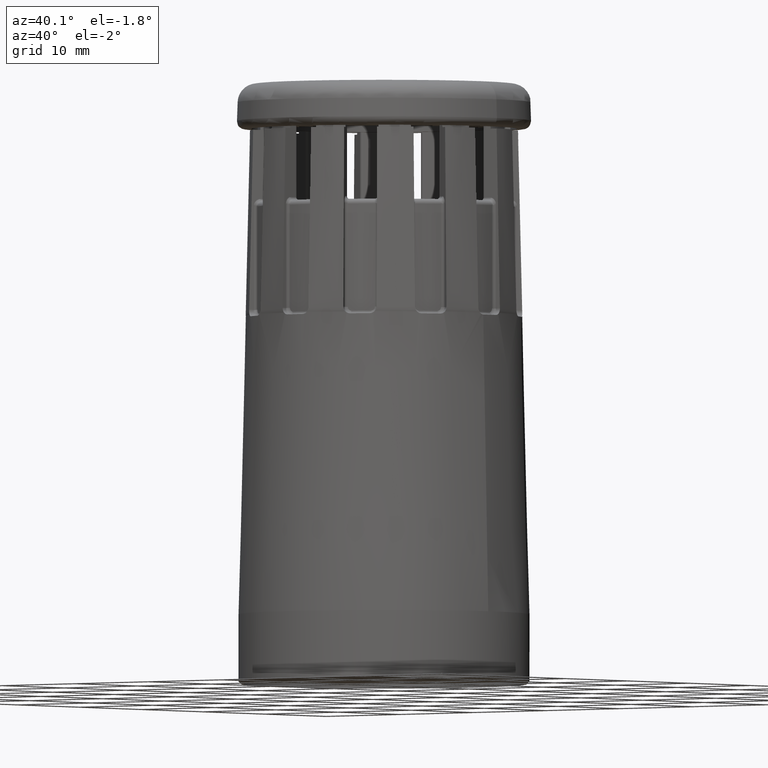
[diagram: clean part render]
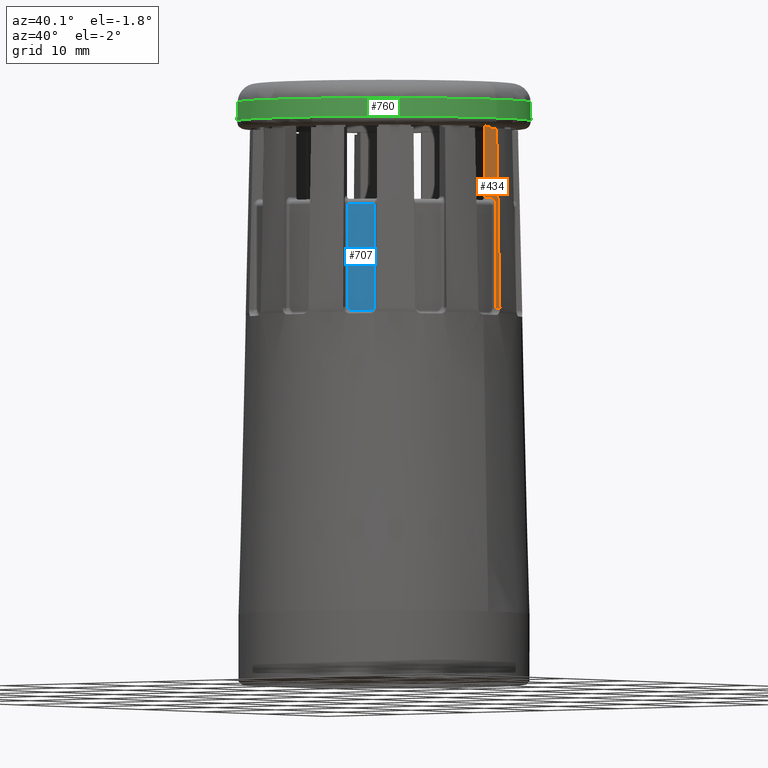
[diagram: same view with three faces highlighted in distinct colors, each labeled with its STEP entity id]
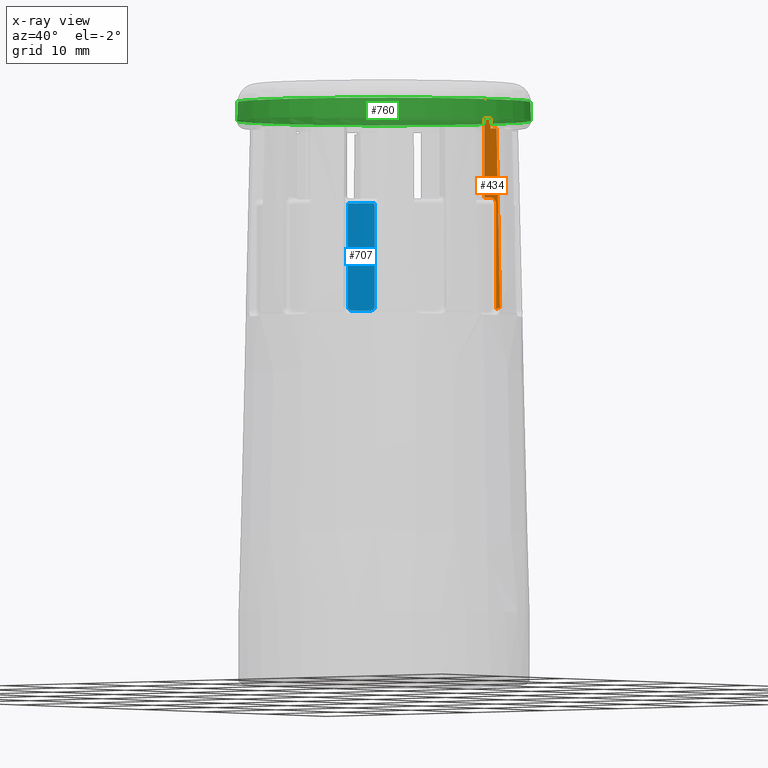
[diagram: x-ray of the same camera — body ghosted, the three highlighted faces saturated]
A machine part, auxiliary view with three faces highlighted in distinct colors.
The next image is the same camera in x-ray (body ghosted, the three faces saturated) — at least one of them is partly hidden behind the body in this view.
Their STEP definitions:

[orange] entity #434 — the highlighted planar face has unit normal (0, 1, 0).
#227=PLANE('',#7231);
#328=(
BOUNDED_CURVE()
B_SPLINE_CURVE(2,(#10248,#10249,#10250),.UNSPECIFIED.,.F.,.F.)
B_SPLINE_CURVE_WITH_KNOTS((3,3),(0.,1.),.UNSPECIFIED.)
CURVE()
GEOMETRIC_REPRESENTATION_ITEM()
RATIONAL_B_SPLINE_CURVE((1.,1.00012975869552,1.00000916871872))
REPRESENTATION_ITEM('')
);
#329=(
BOUNDED_CURVE()
B_SPLINE_CURVE(2,(#10256,#10257,#10258),.UNSPECIFIED.,.F.,.F.)
B_SPLINE_CURVE_WITH_KNOTS((3,3),(0.,1.),.UNSPECIFIED.)
CURVE()
GEOMETRIC_REPRESENTATION_ITEM()
RATIONAL_B_SPLINE_CURVE((1.,1.00049796314909,1.))
REPRESENTATION_ITEM('')
);
#434=ADVANCED_FACE('',(#978),#227,.F.);
#978=FACE_OUTER_BOUND('',#1350,.T.);
#1350=EDGE_LOOP('',(#2594,#2595,#2596,#2597,#2598,#2599,#2600,#2601,#2602,
#2603));
#2072=B_SPLINE_CURVE_WITH_KNOTS('',3,(#10224,#10225,#10226,#10227),
 .UNSPECIFIED.,.F.,.F.,(4,4),(0.,1.),.UNSPECIFIED.);
#2073=B_SPLINE_CURVE_WITH_KNOTS('',3,(#10231,#10232,#10233,#10234,#10235,
#10236,#10237,#10238,#10239,#10240,#10241,#10242),.UNSPECIFIED.,.F.,.F.,
(4,2,2,2,2,4),(0.,0.125,0.3,0.545,0.887999999999999,1.),.UNSPECIFIED.);
#2594=ORIENTED_EDGE('',*,*,#5553,.F.);
#2595=ORIENTED_EDGE('',*,*,#5478,.F.);
#2596=ORIENTED_EDGE('',*,*,#5554,.F.);
#2597=ORIENTED_EDGE('',*,*,#5555,.F.);
#2598=ORIENTED_EDGE('',*,*,#5556,.F.);
#2599=ORIENTED_EDGE('',*,*,#5557,.F.);
#2600=ORIENTED_EDGE('',*,*,#5558,.F.);
#2601=ORIENTED_EDGE('',*,*,#5559,.F.);
#2602=ORIENTED_EDGE('',*,*,#5560,.F.);
#2603=ORIENTED_EDGE('',*,*,#5561,.F.);
#4744=VERTEX_POINT('',#9892);
#4745=VERTEX_POINT('',#9893);
#4808=VERTEX_POINT('',#10228);
#4809=VERTEX_POINT('',#10230);
#4810=VERTEX_POINT('',#10243);
#4811=VERTEX_POINT('',#10245);
#4812=VERTEX_POINT('',#10247);
#4813=VERTEX_POINT('',#10251);
#4814=VERTEX_POINT('',#10253);
#4815=VERTEX_POINT('',#10255);
#5478=EDGE_CURVE('',#4744,#4745,#6560,.T.);
#5553=EDGE_CURVE('',#4745,#4808,#2072,.T.);
#5554=EDGE_CURVE('',#4809,#4744,#6597,.T.);
#5555=EDGE_CURVE('',#4810,#4809,#2073,.T.);
#5556=EDGE_CURVE('',#4811,#4810,#6598,.T.);
#5557=EDGE_CURVE('',#4812,#4811,#6599,.T.);
#5558=EDGE_CURVE('',#4813,#4812,#328,.T.);
#5559=EDGE_CURVE('',#4814,#4813,#6600,.T.);
#5560=EDGE_CURVE('',#4815,#4814,#6601,.T.);
#5561=EDGE_CURVE('',#4808,#4815,#329,.T.);
#6560=LINE('',#9891,#6882);
#6597=LINE('',#10229,#6919);
#6598=LINE('',#10244,#6920);
#6599=LINE('',#10246,#6921);
#6600=LINE('',#10252,#6922);
#6601=LINE('',#10254,#6923);
#6882=VECTOR('',#7934,1.);
#6919=VECTOR('',#8023,1.);
#6920=VECTOR('',#8024,1.);
#6921=VECTOR('',#8025,1.);
#6922=VECTOR('',#8026,1.);
#6923=VECTOR('',#8027,1.);
#7231=AXIS2_PLACEMENT_3D('',#10259,#8028,#8029);
#7934=DIRECTION('',(0.,0.,1.));
#8023=DIRECTION('',(-1.,0.,0.));
#8024=DIRECTION('',(0.,0.,1.));
#8025=DIRECTION('',(-1.,0.,0.));
#8026=DIRECTION('',(1.,0.,0.));
#8027=DIRECTION('',(0.,0.,-1.));
#8028=DIRECTION('',(0.,1.,0.));
#8029=DIRECTION('',(-1.,0.,0.));
#9891=CARTESIAN_POINT('',(12.2293703844473,1.75000000000054,36.6));
#9892=CARTESIAN_POINT('',(12.2293703844473,1.75000000000054,36.6));
#9893=CARTESIAN_POINT('',(12.2293703844474,1.75000000000064,46.9517779331273));
#10224=CARTESIAN_POINT('',(12.2293703844474,1.75000000000064,46.9517779331273));
#10225=CARTESIAN_POINT('',(12.2522305534383,1.75000000000064,46.9614433539969));
#10226=CARTESIAN_POINT('',(12.2757254416925,1.75000000000054,46.9697255686676));
#10227=CARTESIAN_POINT('',(12.2995924724237,1.75000000000054,46.9765353066182));
#10228=CARTESIAN_POINT('',(12.2995924724237,1.75000000000054,46.9765353066182));
#10229=CARTESIAN_POINT('',(13.01950459887,1.75000000000055,36.6));
#10230=CARTESIAN_POINT('',(13.01950459887,1.75000000000055,36.6));
#10231=CARTESIAN_POINT('',(13.8241636275038,1.75000000000056,35.8));
#10232=CARTESIAN_POINT('',(13.8241636275038,1.75000000000056,35.8522468435973));
#10233=CARTESIAN_POINT('',(13.8189669082501,1.75000000000056,35.9049951377512));
#10234=CARTESIAN_POINT('',(13.7940369063996,1.75000000000056,36.0291132054774));
#10235=CARTESIAN_POINT('',(13.769596778885,1.75000000000056,36.0988169909377));
#10236=CARTESIAN_POINT('',(13.6887888524273,1.75000000000056,36.2559392738181));
#10237=CARTESIAN_POINT('',(13.623729493439,1.75000000000056,36.3382777366512));
#10238=CARTESIAN_POINT('',(13.436102595346,1.75000000000056,36.499421867728));
#10239=CARTESIAN_POINT('',(13.3008846760124,1.75000000000055,36.5629844602805));
#10240=CARTESIAN_POINT('',(13.1133367532433,1.75000000000055,36.5959109283083));
#10241=CARTESIAN_POINT('',(13.0663177707332,1.75000000000055,36.6));
#10242=CARTESIAN_POINT('',(13.01950459887,1.75000000000055,36.6));
#10243=CARTESIAN_POINT('',(13.8241636275038,1.75000000000056,35.8));
#10244=CARTESIAN_POINT('',(13.8241636275038,1.75000000000056,25.));
#10245=CARTESIAN_POINT('',(13.8241636275038,1.75000000000056,25.));
#10246=CARTESIAN_POINT('',(14.3402455733131,1.75000000000057,25.));
#10247=CARTESIAN_POINT('',(14.3402455733131,1.75000000000057,25.));
#10248=CARTESIAN_POINT('',(13.890194383089,1.75000000000056,43.8));
#10249=CARTESIAN_POINT('',(14.1116869280183,1.75000000000056,34.5498553050443));
#10250=CARTESIAN_POINT('',(14.3402455733131,1.75000000000057,25.));
#10251=CARTESIAN_POINT('',(13.890194383089,1.75000000000056,43.8));
#10252=CARTESIAN_POINT('',(13.0834819524467,1.75000000000055,43.8));
#10253=CARTESIAN_POINT('',(13.0834819524467,1.75000000000055,43.8));
#10254=CARTESIAN_POINT('',(13.0834819524467,1.75000000000055,46.2));
#10255=CARTESIAN_POINT('',(13.0834819524467,1.75000000000055,46.2));
#10256=CARTESIAN_POINT('',(12.2758910063587,1.75000000000054,47.));
#10257=CARTESIAN_POINT('',(12.6670678709417,1.75000000000055,46.612738342433));
#10258=CARTESIAN_POINT('',(13.0834819524467,1.75000000000055,46.2));
#10259=CARTESIAN_POINT('',(22.0629765156146,1.75000000000064,47.));

[blue] entity #707 — the highlighted cylindrical surface (partial cylindrical patch) has radius 13.6 mm, axis along (0, 0, 1).
#707=ADVANCED_FACE('',(#1248),#921,.T.);
#921=CYLINDRICAL_SURFACE('',#7680,13.6);
#1248=FACE_OUTER_BOUND('',#1626,.T.);
#1626=EDGE_LOOP('',(#4123,#4124,#4125,#4126,#4127,#4128));
#1908=CIRCLE('',#7556,13.6);
#1977=CIRCLE('',#7678,13.6);
#2381=B_SPLINE_CURVE_WITH_KNOTS('',3,(#14358,#14359,#14360,#14361,#14362,
#14363,#14364,#14365,#14366,#14367,#14368,#14369),.UNSPECIFIED.,.F.,.F.,
(4,2,2,2,2,4),(0.,0.112,0.455000000000001,0.699999999999999,0.875000000000001,
1.),.UNSPECIFIED.);
#2384=B_SPLINE_CURVE_WITH_KNOTS('',3,(#14540,#14541,#14542,#14543,#14544,
#14545,#14546,#14547,#14548,#14549,#14550,#14551),.UNSPECIFIED.,.F.,.F.,
(4,2,2,2,2,4),(0.,0.112,0.455,0.700000000000001,0.875,1.),.UNSPECIFIED.);
#4123=ORIENTED_EDGE('',*,*,#6304,.F.);
#4124=ORIENTED_EDGE('',*,*,#6226,.F.);
#4125=ORIENTED_EDGE('',*,*,#6423,.F.);
#4126=ORIENTED_EDGE('',*,*,#6242,.F.);
#4127=ORIENTED_EDGE('',*,*,#6299,.F.);
#4128=ORIENTED_EDGE('',*,*,#6302,.F.);
#5283=VERTEX_POINT('',#13443);
#5284=VERTEX_POINT('',#13445);
#5294=VERTEX_POINT('',#13497);
#5296=VERTEX_POINT('',#13511);
#5325=VERTEX_POINT('',#14357);
#5326=VERTEX_POINT('',#14536);
#6226=EDGE_CURVE('',#5283,#5284,#6803,.T.);
#6242=EDGE_CURVE('',#5296,#5294,#6806,.T.);
#6299=EDGE_CURVE('',#5325,#5296,#2381,.T.);
#6302=EDGE_CURVE('',#5326,#5325,#1908,.T.);
#6304=EDGE_CURVE('',#5284,#5326,#2384,.T.);
#6423=EDGE_CURVE('',#5294,#5283,#1977,.T.);
#6803=LINE('',#13444,#7125);
#6806=LINE('',#13512,#7128);
#7125=VECTOR('',#8803,1.);
#7128=VECTOR('',#8814,1.);
#7556=AXIS2_PLACEMENT_3D('',#14537,#8890,#8891);
#7678=AXIS2_PLACEMENT_3D('',#18043,#9134,#9135);
#7680=AXIS2_PLACEMENT_3D('',#18045,#9138,#9139);
#8803=DIRECTION('',(0.,0.,-1.));
#8814=DIRECTION('',(0.,0.,1.));
#8890=DIRECTION('',(0.,0.,-1.));
#8891=DIRECTION('',(0.500000000000042,-0.866025403784415,0.));
#9134=DIRECTION('',(6.122553E-17,-1.060457E-16,1.));
#9135=DIRECTION('',(0.500000000000042,-0.866025403784414,0.));
#9138=DIRECTION('',(2.368476E-16,0.,1.));
#9139=DIRECTION('',(-1.,0.,2.55106393526001E-16));
#13443=CARTESIAN_POINT('',(7.99153479350089,-11.0043342208544,35.8));
#13444=CARTESIAN_POINT('',(7.99153479350089,-11.0043342208544,35.8));
#13445=CARTESIAN_POINT('',(7.99153479350089,-11.0043342208544,25.));
#13497=CARTESIAN_POINT('',(5.53426559024497,-12.4230392568257,35.8));
#13511=CARTESIAN_POINT('',(5.53426559024497,-12.4230392568257,25.));
#13512=CARTESIAN_POINT('',(5.53426559024497,-12.4230392568257,25.));
#14357=CARTESIAN_POINT('',(5.89087015575398,-12.2579626695487,24.6));
#14358=CARTESIAN_POINT('',(5.89087015575398,-12.2579626695487,24.6));
#14359=CARTESIAN_POINT('',(5.87024933483408,-12.2678725201347,24.6));
#14360=CARTESIAN_POINT('',(5.84951239174206,-12.2777731543231,24.6020541716109));
#14361=CARTESIAN_POINT('',(5.76671609890241,-12.3170515096996,24.6185772094263));
#14362=CARTESIAN_POINT('',(5.70680071119497,-12.3448483152561,24.6504546356941));
#14363=CARTESIAN_POINT('',(5.62351703094741,-12.3829524940533,24.7310645865403));
#14364=CARTESIAN_POINT('',(5.59457181417425,-12.3960193449896,24.7722285170424));
#14365=CARTESIAN_POINT('',(5.55859334207969,-12.4121839396592,24.8507339746193));
#14366=CARTESIAN_POINT('',(5.54769830054394,-12.4170485209408,24.8855558601359));
#14367=CARTESIAN_POINT('',(5.53658349825128,-12.422007441789,24.9475555010571));
#14368=CARTESIAN_POINT('',(5.53426559024497,-12.4230392568258,24.9739027679729));
#14369=CARTESIAN_POINT('',(5.53426559024497,-12.4230392568258,25.));
#14536=CARTESIAN_POINT('',(7.67027199259447,-11.2306245400522,24.6));
#14537=CARTESIAN_POINT('',(-3.90342078878922E-15,-1.2667644727033E-13,24.6));
#14540=CARTESIAN_POINT('',(7.99153479350089,-11.0043342208544,25.));
#14541=CARTESIAN_POINT('',(7.99153479350089,-11.0043342208544,24.9766177400711));
#14542=CARTESIAN_POINT('',(7.98989009641892,-11.0055291757778,24.953132158424));
#14543=CARTESIAN_POINT('',(7.97665870576583,-11.0151290393083,24.85951886558));
#14544=CARTESIAN_POINT('',(7.95109983961333,-11.0336828333392,24.7921093556241));
#14545=CARTESIAN_POINT('',(7.8865208465021,-11.0798864431873,24.6990405880115));
#14546=CARTESIAN_POINT('',(7.85350765323532,-11.1033523962651,24.6668330383508));
#14547=CARTESIAN_POINT('',(7.79050649621714,-11.1476023233921,24.626922590894));
#14548=CARTESIAN_POINT('',(7.76252062238962,-11.1671181060564,24.6148612394272));
#14549=CARTESIAN_POINT('',(7.71260010449514,-11.2016266238344,24.6025631016266));
#14550=CARTESIAN_POINT('',(7.69135670018047,-11.2162241439307,24.6));
#14551=CARTESIAN_POINT('',(7.67027199259447,-11.2306245400522,24.6));
#18043=CARTESIAN_POINT('',(-1.25142078878943E-15,-1.2667644727033E-13,35.8));
#18045=CARTESIAN_POINT('',(-3.97442078878945E-15,-1.2667644727033E-13,24.3));

[green] entity #760 — the highlighted conical surface has half-angle 2 deg.
#120=FACE_BOUND('',#1687,.T.);
#121=FACE_BOUND('',#1688,.T.);
#216=CONICAL_SURFACE('',#7776,15.33218807723,2.00000000000009);
#760=ADVANCED_FACE('',(#120,#121),#216,.T.);
#1687=EDGE_LOOP('',(#4444));
#1688=EDGE_LOOP('',(#4445));
#2019=CIRCLE('',#7773,15.4);
#2020=CIRCLE('',#7775,15.33218807723);
#4444=ORIENTED_EDGE('',*,*,#6473,.F.);
#4445=ORIENTED_EDGE('',*,*,#6474,.T.);
#5371=VERTEX_POINT('',#18161);
#5372=VERTEX_POINT('',#18164);
#6473=EDGE_CURVE('',#5371,#5371,#2019,.T.);
#6474=EDGE_CURVE('',#5372,#5372,#2020,.T.);
#7773=AXIS2_PLACEMENT_3D('',#18160,#9332,#9333);
#7775=AXIS2_PLACEMENT_3D('',#18163,#9336,#9337);
#7776=AXIS2_PLACEMENT_3D('',#18165,#9338,#9339);
#9332=DIRECTION('',(0.,0.,-1.));
#9333=DIRECTION('',(1.,0.,0.));
#9336=DIRECTION('',(0.,0.,-1.));
#9337=DIRECTION('',(1.,0.,0.));
#9338=DIRECTION('',(0.,0.,-1.));
#9339=DIRECTION('',(1.,0.,-9.66555197486204E-16));
#18160=CARTESIAN_POINT('',(0.,-1.2490009027033E-13,44.827919597362));
#18161=CARTESIAN_POINT('',(15.4,-1.2490009027033E-13,44.827919597362));
#18163=CARTESIAN_POINT('',(0.,-1.2490009027033E-13,46.769798993405));
#18164=CARTESIAN_POINT('',(15.33218807723,-1.2490009027033E-13,46.769798993405));
#18165=CARTESIAN_POINT('',(0.,-1.2490009027033E-13,46.769798993405));